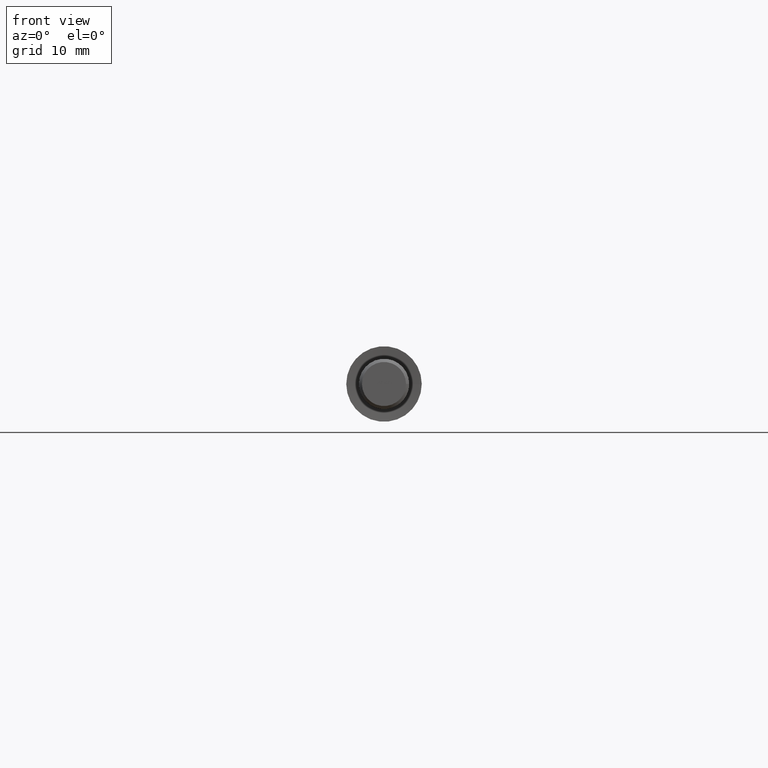
[diagram: clean part render]
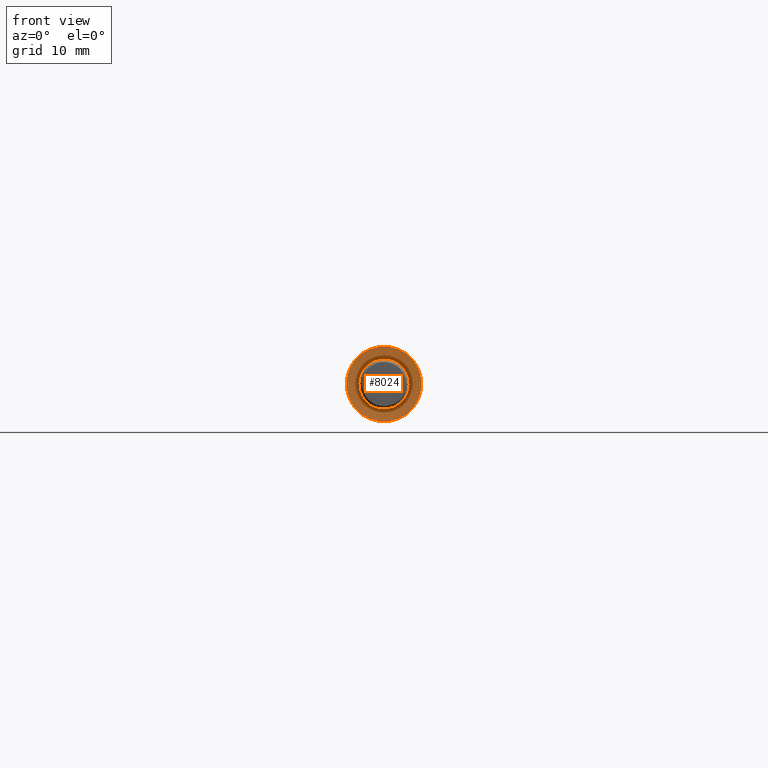
[diagram: same view with one face highlighted and labeled with its STEP entity id]
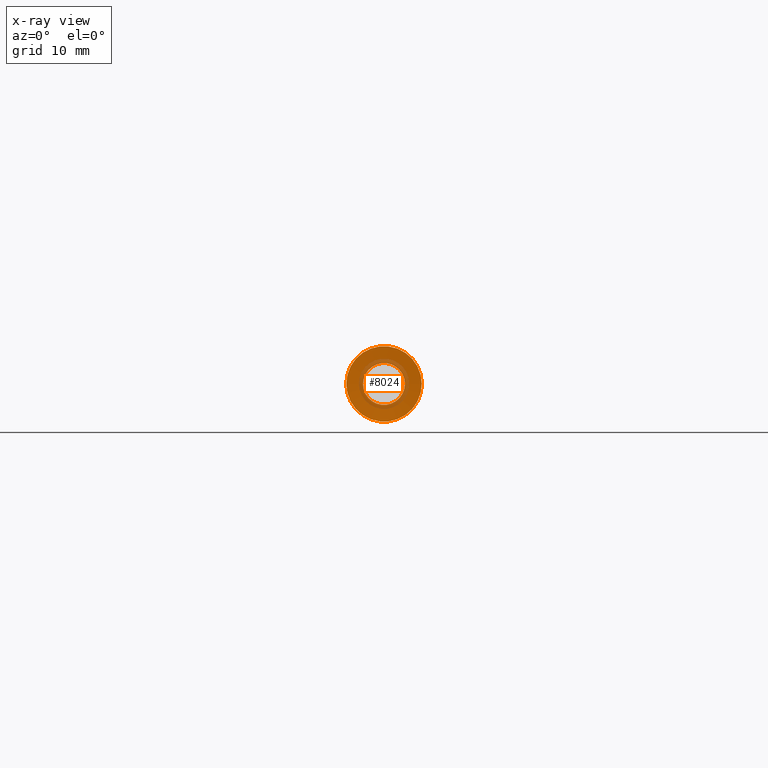
[diagram: x-ray of the same camera — body ghosted, the highlighted face saturated]
A machine part, front view. The second image highlights one B-rep face of the part: STEP entity #8024.
The next image is the same camera in x-ray: the body ghosted, the highlighted face saturated — about 20% of this face is hidden behind the body in this view.
In plain terms, the highlighted conical surface has half-angle 85 deg.
Its self-contained STEP definition (entity closure, byte-faithful):
#170 = VERTEX_POINT ( 'NONE', #1275 ) ;
#173 = CARTESIAN_POINT ( 'NONE',  ( 1.670795082806990459E-31, 0.2344633132870081738, 0.000000000000000000 ) ) ;
#199 = CIRCLE ( 'NONE', #6618, 3.320072066050799187 ) ;
#1065 = EDGE_LOOP ( 'NONE', ( #1253 ) ) ;
#1235 = CARTESIAN_POINT ( 'NONE',  ( 3.320072066050799187, 0.2344633132870081738, 0.000000000000000000 ) ) ;
#1253 = ORIENTED_EDGE ( 'NONE', *, *, #1479, .T. ) ;
#1275 = CARTESIAN_POINT ( 'NONE',  ( 6.000000000000009770, 1.004833014462907251E-32, 0.000000000000000000 ) ) ;
#1407 = ORIENTED_EDGE ( 'NONE', *, *, #9135, .F. ) ;
#1427 = DIRECTION ( 'NONE',  ( 1.674721690771509348E-33, -1.000000000000000000, -0.000000000000000000 ) ) ;
#1479 = EDGE_CURVE ( 'NONE', #170, #170, #8252, .T. ) ;
#4528 = AXIS2_PLACEMENT_3D ( 'NONE', #173, #7536, #5587 ) ;
#5523 = DIRECTION ( 'NONE',  ( 1.674721690771509348E-33, -1.000000000000000000, -0.000000000000000000 ) ) ;
#5587 = DIRECTION ( 'NONE',  ( 1.000000000000000000, 0.000000000000000000, 0.000000000000000000 ) ) ;
#6006 = AXIS2_PLACEMENT_3D ( 'NONE', #12799, #5523, #6531 ) ;
#6418 = VERTEX_POINT ( 'NONE', #1235 ) ;
#6531 = DIRECTION ( 'NONE',  ( 1.000000000000000000, 1.674721690771509348E-33, 0.000000000000000000 ) ) ;
#6618 = AXIS2_PLACEMENT_3D ( 'NONE', #6707, #1427, #9812 ) ;
#6707 = CARTESIAN_POINT ( 'NONE',  ( 1.670795082806990459E-31, 0.2344633132870081738, 0.000000000000000000 ) ) ;
#6981 = FACE_BOUND ( 'NONE', #11310, .T. ) ;
#7536 = DIRECTION ( 'NONE',  ( 1.674721690771509348E-33, -1.000000000000000000, -0.000000000000000000 ) ) ;
#8024 = ADVANCED_FACE ( 'NONE', ( #12242, #6981 ), #12068, .F. ) ;
#8252 = CIRCLE ( 'NONE', #6006, 6.000000000000009770 ) ;
#9135 = EDGE_CURVE ( 'NONE', #6418, #6418, #199, .T. ) ;
#9812 = DIRECTION ( 'NONE',  ( 1.000000000000000000, 0.000000000000000000, 0.000000000000000000 ) ) ;
#11310 = EDGE_LOOP ( 'NONE', ( #1407 ) ) ;
#12068 = CONICAL_SURFACE ( 'NONE', #4528, 3.320072066050799187, 1.483529864195179737 ) ;
#12242 = FACE_OUTER_BOUND ( 'NONE', #1065, .T. ) ;
#12799 = CARTESIAN_POINT ( 'NONE',  ( 1.674721690771509485E-31, 0.000000000000000000, 0.000000000000000000 ) ) ;